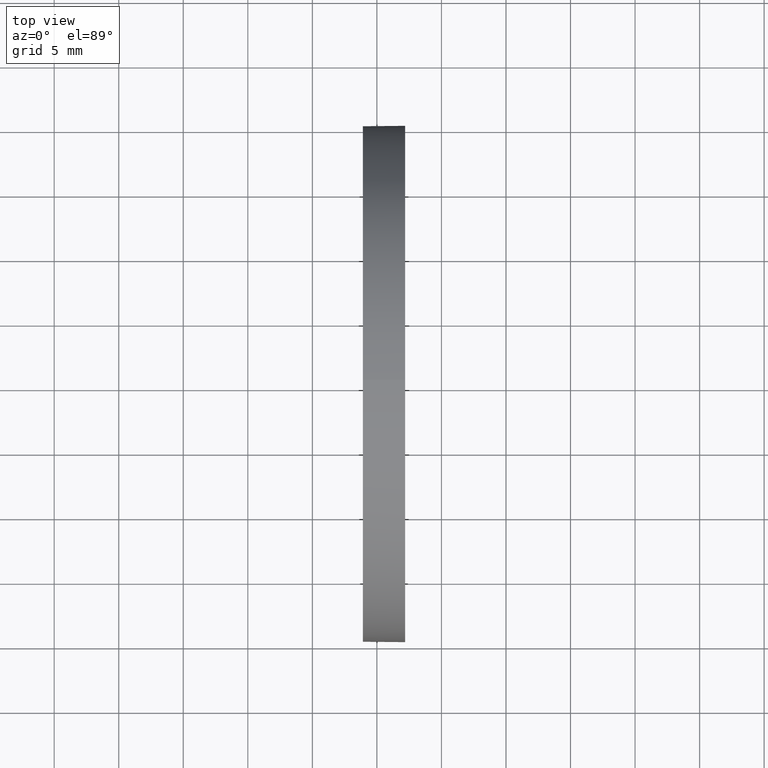
[diagram: clean part render]
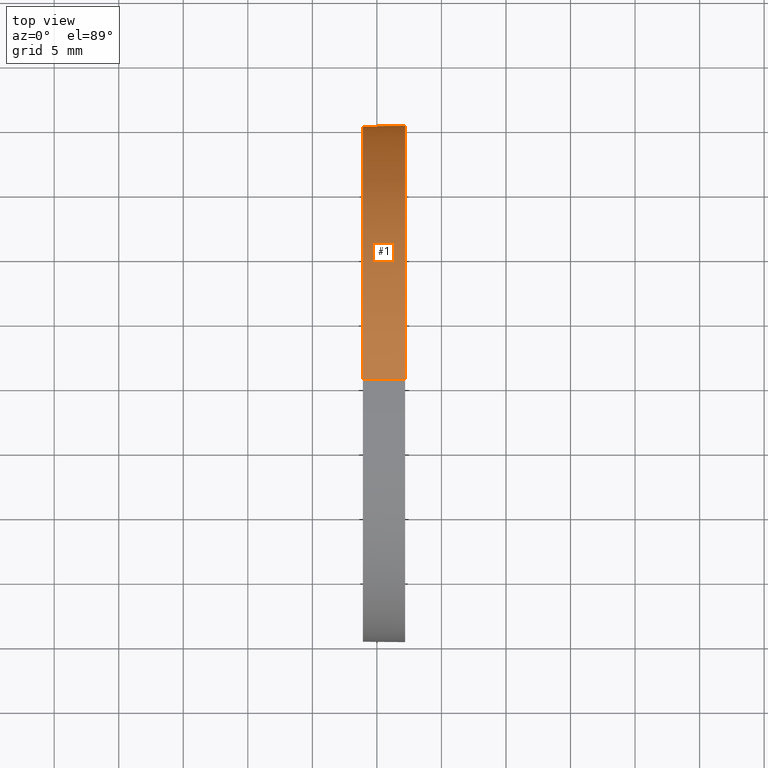
[diagram: same view with one face highlighted and labeled with its STEP entity id]
A machine part, top view. The second image highlights one B-rep face of the part: STEP entity #1.
In plain terms, the highlighted cylindrical surface (partial cylindrical patch) has radius 20 mm, axis along (-1, -0, -0).
Its self-contained STEP definition (entity closure, byte-faithful):
#1 = ADVANCED_FACE ( 'NONE', ( #2 ), #137, .T. ) ;
#2 = FACE_OUTER_BOUND ( 'NONE', #156, .T. ) ;
#11 = CARTESIAN_POINT ( 'NONE',  ( 117.1877506669351400, 65.15563045701519200, -20.00000000000000400 ) ) ;
#13 = LINE ( 'NONE', #184, #175 ) ;
#29 = CARTESIAN_POINT ( 'NONE',  ( 117.1877506669351400, 65.15563045701519200, 20.00000000000000400 ) ) ;
#33 = EDGE_CURVE ( 'NONE', #164, #170, #87, .T. ) ;
#40 = DIRECTION ( 'NONE',  ( -1.000000000000000000, -0.0000000000000000000, -0.0000000000000000000 ) ) ;
#41 = EDGE_CURVE ( 'NONE', #101, #164, #129, .T. ) ;
#43 = DIRECTION ( 'NONE',  ( 0.0000000000000000000, 0.0000000000000000000, 1.000000000000000000 ) ) ;
#45 = ORIENTED_EDGE ( 'NONE', *, *, #93, .T. ) ;
#51 = EDGE_CURVE ( 'NONE', #130, #140, #100, .T. ) ;
#53 = DIRECTION ( 'NONE',  ( 0.0000000000000000000, 0.0000000000000000000, 1.000000000000000000 ) ) ;
#57 = ORIENTED_EDGE ( 'NONE', *, *, #91, .T. ) ;
#58 = DIRECTION ( 'NONE',  ( 0.0000000000000000000, 0.0000000000000000000, 1.000000000000000000 ) ) ;
#63 = CIRCLE ( 'NONE', #149, 20.00000000000000400 ) ;
#64 = DIRECTION ( 'NONE',  ( -1.000000000000000000, -0.0000000000000000000, -0.0000000000000000000 ) ) ;
#66 = VECTOR ( 'NONE', #64, 1000.000000000000000 ) ;
#67 = DIRECTION ( 'NONE',  ( -1.000000000000000000, -0.0000000000000000000, -0.0000000000000000000 ) ) ;
#70 = CARTESIAN_POINT ( 'NONE',  ( 113.9119316741596200, 65.15563045701519200, -20.00000000000000400 ) ) ;
#73 = CARTESIAN_POINT ( 'NONE',  ( 117.1877506669351600, 85.15563045701502200, 2.449293598294677700E-015 ) ) ;
#81 = DIRECTION ( 'NONE',  ( -1.000000000000000000, -0.0000000000000000000, -0.0000000000000000000 ) ) ;
#82 = ORIENTED_EDGE ( 'NONE', *, *, #41, .F. ) ;
#85 = CARTESIAN_POINT ( 'NONE',  ( 105.6218371238301200, 65.15563045701519200, 0.0000000000000000000 ) ) ;
#87 = CIRCLE ( 'NONE', #186, 20.00000000000000400 ) ;
#89 = ORIENTED_EDGE ( 'NONE', *, *, #51, .T. ) ;
#91 = EDGE_CURVE ( 'NONE', #101, #130, #63, .T. ) ;
#93 = EDGE_CURVE ( 'NONE', #140, #170, #13, .T. ) ;
#100 = CIRCLE ( 'NONE', #112, 20.00000000000000400 ) ;
#101 = VERTEX_POINT ( 'NONE', #29 ) ;
#107 = CARTESIAN_POINT ( 'NONE',  ( 113.9119316741596200, 65.15563045701519200, 0.0000000000000000000 ) ) ;
#112 = AXIS2_PLACEMENT_3D ( 'NONE', #115, #67, #53 ) ;
#115 = CARTESIAN_POINT ( 'NONE',  ( 117.1877506669351400, 65.15563045701519200, 0.0000000000000000000 ) ) ;
#117 = DIRECTION ( 'NONE',  ( -1.000000000000000000, -0.0000000000000000000, -0.0000000000000000000 ) ) ;
#119 = DIRECTION ( 'NONE',  ( -1.000000000000000000, -0.0000000000000000000, -0.0000000000000000000 ) ) ;
#129 = LINE ( 'NONE', #152, #66 ) ;
#130 = VERTEX_POINT ( 'NONE', #73 ) ;
#137 = CYLINDRICAL_SURFACE ( 'NONE', #171, 20.00000000000000400 ) ;
#140 = VERTEX_POINT ( 'NONE', #11 ) ;
#149 = AXIS2_PLACEMENT_3D ( 'NONE', #161, #117, #174 ) ;
#150 = ORIENTED_EDGE ( 'NONE', *, *, #33, .F. ) ;
#152 = CARTESIAN_POINT ( 'NONE',  ( 105.6218371238301200, 65.15563045701519200, 20.00000000000000400 ) ) ;
#156 = EDGE_LOOP ( 'NONE', ( #89, #45, #150, #82, #57 ) ) ;
#158 = CARTESIAN_POINT ( 'NONE',  ( 113.9119316741596200, 65.15563045701519200, 20.00000000000000400 ) ) ;
#161 = CARTESIAN_POINT ( 'NONE',  ( 117.1877506669351400, 65.15563045701519200, 0.0000000000000000000 ) ) ;
#164 = VERTEX_POINT ( 'NONE', #158 ) ;
#170 = VERTEX_POINT ( 'NONE', #70 ) ;
#171 = AXIS2_PLACEMENT_3D ( 'NONE', #85, #40, #58 ) ;
#174 = DIRECTION ( 'NONE',  ( 0.0000000000000000000, 0.0000000000000000000, 1.000000000000000000 ) ) ;
#175 = VECTOR ( 'NONE', #81, 1000.000000000000000 ) ;
#184 = CARTESIAN_POINT ( 'NONE',  ( 105.6218371238301200, 65.15563045701519200, -20.00000000000000400 ) ) ;
#186 = AXIS2_PLACEMENT_3D ( 'NONE', #107, #119, #43 ) ;